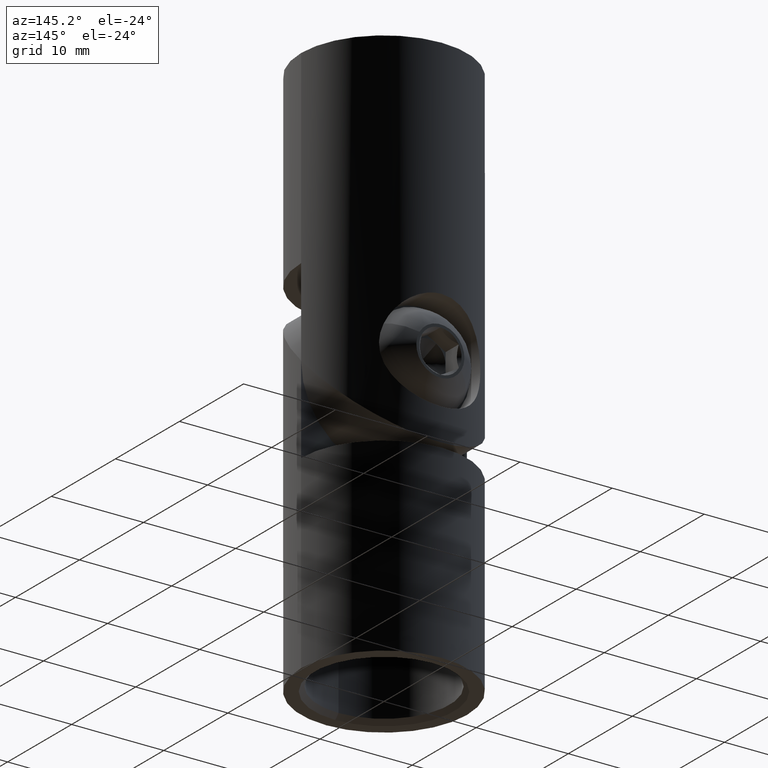
[diagram: clean part render]
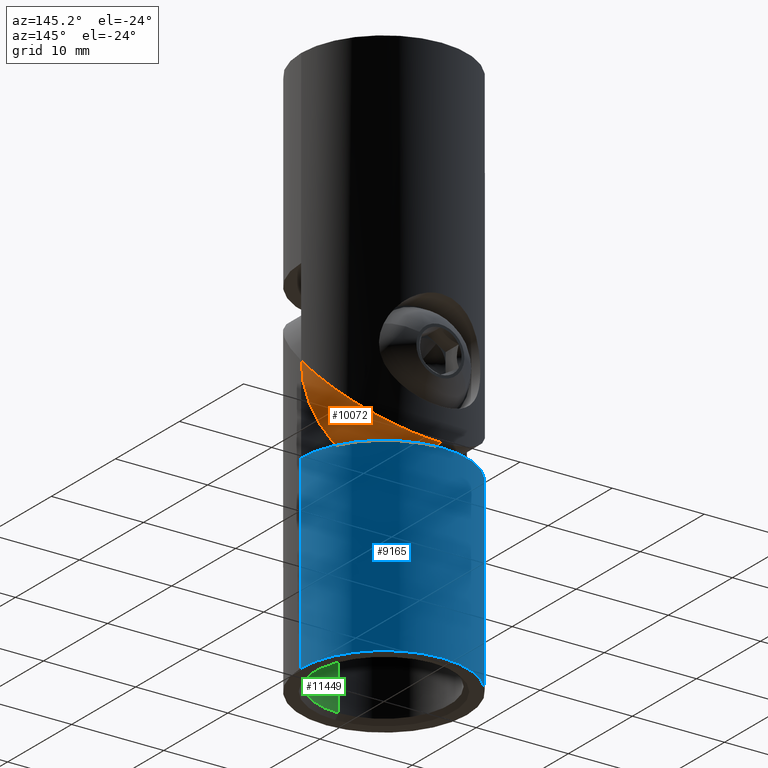
[diagram: same view with three faces highlighted in distinct colors, each labeled with its STEP entity id]
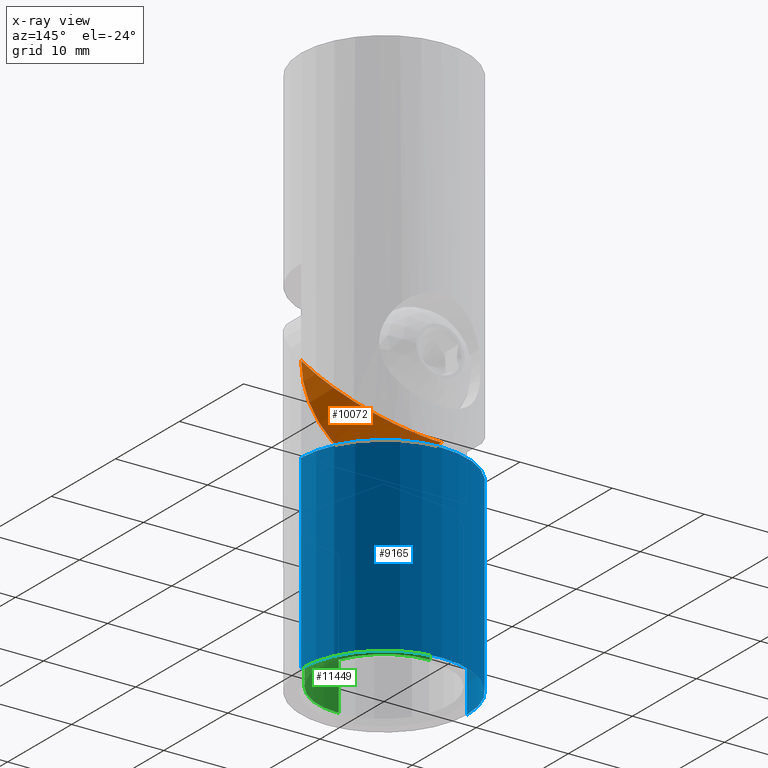
[diagram: x-ray of the same camera — body ghosted, the three highlighted faces saturated]
A machine part, auxiliary view with three faces highlighted in distinct colors.
The next image is the same camera in x-ray (body ghosted, the three faces saturated) — at least one of them is partly hidden behind the body in this view.
Their STEP definitions:

[orange] entity #10072 — the highlighted cylindrical surface (partial cylindrical patch) has radius 9 mm, axis along (-0, -1, -0).
#29 = EDGE_CURVE ( 'NONE', #7016, #9871, #10879, .T. ) ;
#1068 = VECTOR ( 'NONE', #2670, 1000.000000000000000 ) ;
#1731 = DIRECTION ( 'NONE',  ( 0.000000000000000000, 0.000000000000000000, 1.000000000000000000 ) ) ;
#1733 = CYLINDRICAL_SURFACE ( 'NONE', #2919, 8.999999999999998224 ) ;
#2089 = EDGE_CURVE ( 'NONE', #9871, #6014, #3854, .T. ) ;
#2095 = CARTESIAN_POINT ( 'NONE',  ( 9.000000000000000000, 0.000000000000000000, -9.499999999999998224 ) ) ;
#2556 = CARTESIAN_POINT ( 'NONE',  ( -1.734723475976807094E-15, 8.999999999999998224, -18.49999999999999645 ) ) ;
#2670 = DIRECTION ( 'NONE',  ( -0.000000000000000000, -1.000000000000000000, -0.000000000000000000 ) ) ;
#2919 = AXIS2_PLACEMENT_3D ( 'NONE', #12274, #9195, #2997 ) ;
#2959 = CARTESIAN_POINT ( 'NONE',  ( 9.000000000000000000, 5.272077938642141248, -14.77207793864213947 ) ) ;
#2997 = DIRECTION ( 'NONE',  ( 0.000000000000000000, 0.000000000000000000, -1.000000000000000000 ) ) ;
#3730 = CARTESIAN_POINT ( 'NONE',  ( -1.734723475976807094E-15, 0.000000000000000000, -18.49999999999999645 ) ) ;
#3793 = EDGE_CURVE ( 'NONE', #7016, #6014, #7360, .T. ) ;
#3854 = LINE ( 'NONE', #12989, #1068 ) ;
#5850 = CARTESIAN_POINT ( 'NONE',  ( -1.734723475976807094E-15, -0.000000000000000000, -9.499999999999998224 ) ) ;
#6014 = VERTEX_POINT ( 'NONE', #3730 ) ;
#7016 = VERTEX_POINT ( 'NONE', #12423 ) ;
#7133 = EDGE_LOOP ( 'NONE', ( #11623, #11797, #12955 ) ) ;
#7360 = CIRCLE ( 'NONE', #8536, 9.000000000000000000 ) ;
#8536 = AXIS2_PLACEMENT_3D ( 'NONE', #5850, #10002, #1731 ) ;
#9195 = DIRECTION ( 'NONE',  ( -0.000000000000000000, -1.000000000000000000, -0.000000000000000000 ) ) ;
#9325 = CARTESIAN_POINT ( 'NONE',  ( 5.272077938642142136, 8.999999999999998224, -18.49999999999999289 ) ) ;
#9871 = VERTEX_POINT ( 'NONE', #2556 ) ;
#10002 = DIRECTION ( 'NONE',  ( -0.000000000000000000, 1.000000000000000000, -0.000000000000000000 ) ) ;
#10072 = ADVANCED_FACE ( 'NONE', ( #11761 ), #1733, .T. ) ;
#10183 = CARTESIAN_POINT ( 'NONE',  ( -1.734723475976807094E-15, 8.999999999999998224, -18.49999999999999645 ) ) ;
#10879 =( BOUNDED_CURVE ( )  B_SPLINE_CURVE ( 3, ( #2095, #2959, #9325, #10183 ),
 .UNSPECIFIED., .F., .F. ) 
 B_SPLINE_CURVE_WITH_KNOTS ( ( 4, 4 ),
 ( 4.712388980384689674, 6.283185307179586232 ),
 .UNSPECIFIED. ) 
 CURVE ( )  GEOMETRIC_REPRESENTATION_ITEM ( )  RATIONAL_B_SPLINE_CURVE ( ( 1.000000000000000000, 0.8047378541243649375, 0.8047378541243649375, 1.000000000000000000 ) ) 
 REPRESENTATION_ITEM ( '' )  );
#11623 = ORIENTED_EDGE ( 'NONE', *, *, #2089, .F. ) ;
#11761 = FACE_OUTER_BOUND ( 'NONE', #7133, .T. ) ;
#11797 = ORIENTED_EDGE ( 'NONE', *, *, #29, .F. ) ;
#12274 = CARTESIAN_POINT ( 'NONE',  ( -1.734723475976807094E-15, 9.000000000000000000, -9.499999999999998224 ) ) ;
#12423 = CARTESIAN_POINT ( 'NONE',  ( 9.000000000000000000, 0.000000000000000000, -9.499999999999998224 ) ) ;
#12955 = ORIENTED_EDGE ( 'NONE', *, *, #3793, .T. ) ;
#12989 = CARTESIAN_POINT ( 'NONE',  ( -1.734723475976807094E-15, 9.000000000000000000, -18.49999999999999645 ) ) ;

[blue] entity #9165 — the highlighted cylindrical surface (partial cylindrical patch) has radius 9 mm, axis along (0, 0, 1).
#569 = CIRCLE ( 'NONE', #5946, 9.000000000000007105 ) ;
#1070 = DIRECTION ( 'NONE',  ( 1.000000000000000000, 0.000000000000000000, 0.000000000000000000 ) ) ;
#1077 = CYLINDRICAL_SURFACE ( 'NONE', #9506, 9.000000000000007105 ) ;
#1226 = CARTESIAN_POINT ( 'NONE',  ( -9.000000000000007105, 0.000000000000000000, 0.000000000000000000 ) ) ;
#1436 = ORIENTED_EDGE ( 'NONE', *, *, #10505, .F. ) ;
#1791 = AXIS2_PLACEMENT_3D ( 'NONE', #8031, #1846, #13067 ) ;
#1796 = VERTEX_POINT ( 'NONE', #12150 ) ;
#1846 = DIRECTION ( 'NONE',  ( 0.000000000000000000, 0.000000000000000000, 1.000000000000000000 ) ) ;
#1922 = ORIENTED_EDGE ( 'NONE', *, *, #3507, .F. ) ;
#3507 = EDGE_CURVE ( 'NONE', #7596, #5503, #569, .T. ) ;
#3660 = EDGE_CURVE ( 'NONE', #11663, #1796, #8334, .T. ) ;
#3680 = LINE ( 'NONE', #9142, #8176 ) ;
#4055 = DIRECTION ( 'NONE',  ( 0.000000000000000000, 0.000000000000000000, -1.000000000000000000 ) ) ;
#4216 = DIRECTION ( 'NONE',  ( 0.000000000000000000, 0.000000000000000000, 1.000000000000000000 ) ) ;
#4458 = CARTESIAN_POINT ( 'NONE',  ( -9.000000000000000000, 0.000000000000000000, 20.50000000000001776 ) ) ;
#5503 = VERTEX_POINT ( 'NONE', #12660 ) ;
#5946 = AXIS2_PLACEMENT_3D ( 'NONE', #7268, #4216, #1070 ) ;
#7039 = VECTOR ( 'NONE', #10124, 1000.000000000000000 ) ;
#7095 = DIRECTION ( 'NONE',  ( 0.000000000000000000, 0.000000000000000000, -1.000000000000000000 ) ) ;
#7197 = DIRECTION ( 'NONE',  ( -1.000000000000000000, 0.000000000000000000, 0.000000000000000000 ) ) ;
#7268 = CARTESIAN_POINT ( 'NONE',  ( 0.000000000000000000, 0.000000000000000000, 20.50000000000001776 ) ) ;
#7596 = VERTEX_POINT ( 'NONE', #4458 ) ;
#8031 = CARTESIAN_POINT ( 'NONE',  ( 0.000000000000000000, 0.000000000000000000, 0.000000000000000000 ) ) ;
#8107 = CARTESIAN_POINT ( 'NONE',  ( 0.000000000000000000, 0.000000000000000000, 20.50000000000001776 ) ) ;
#8176 = VECTOR ( 'NONE', #7095, 1000.000000000000000 ) ;
#8334 = CIRCLE ( 'NONE', #1791, 9.000000000000007105 ) ;
#8453 = EDGE_LOOP ( 'NONE', ( #1436, #1922, #9425, #9440 ) ) ;
#9142 = CARTESIAN_POINT ( 'NONE',  ( 9.000000000000007105, 1.102182119232619883E-15, 20.50000000000001776 ) ) ;
#9165 = ADVANCED_FACE ( 'NONE', ( #10479 ), #1077, .T. ) ;
#9425 = ORIENTED_EDGE ( 'NONE', *, *, #11966, .T. ) ;
#9440 = ORIENTED_EDGE ( 'NONE', *, *, #3660, .T. ) ;
#9506 = AXIS2_PLACEMENT_3D ( 'NONE', #8107, #4055, #7197 ) ;
#10124 = DIRECTION ( 'NONE',  ( 0.000000000000000000, 0.000000000000000000, -1.000000000000000000 ) ) ;
#10479 = FACE_OUTER_BOUND ( 'NONE', #8453, .T. ) ;
#10505 = EDGE_CURVE ( 'NONE', #5503, #1796, #3680, .T. ) ;
#10609 = LINE ( 'NONE', #11176, #7039 ) ;
#11176 = CARTESIAN_POINT ( 'NONE',  ( -9.000000000000007105, 0.000000000000000000, 20.50000000000001776 ) ) ;
#11663 = VERTEX_POINT ( 'NONE', #1226 ) ;
#11966 = EDGE_CURVE ( 'NONE', #7596, #11663, #10609, .T. ) ;
#12150 = CARTESIAN_POINT ( 'NONE',  ( 9.000000000000007105, 0.000000000000000000, 0.000000000000000000 ) ) ;
#12660 = CARTESIAN_POINT ( 'NONE',  ( 9.000000000000000000, 1.102182119232618700E-15, 20.50000000000001776 ) ) ;
#13067 = DIRECTION ( 'NONE',  ( 1.000000000000000000, 0.000000000000000000, 0.000000000000000000 ) ) ;

[green] entity #11449 — the highlighted cylindrical surface (partial cylindrical patch) has radius 7.1 mm, axis along (0, 0, 1).
#115 = CARTESIAN_POINT ( 'NONE',  ( 0.000000000000000000, 7.099999999999996092, 4.500000000000007105 ) ) ;
#224 = CIRCLE ( 'NONE', #4487, 7.099999999999996980 ) ;
#239 = VECTOR ( 'NONE', #3085, 1000.000000000000000 ) ;
#914 = DIRECTION ( 'NONE',  ( 0.000000000000000000, 1.079064276512101846E-18, 1.000000000000000000 ) ) ;
#998 = CARTESIAN_POINT ( 'NONE',  ( 8.694992273946211691E-16, -7.099999999999996980, 20.00000000000000355 ) ) ;
#1511 = VERTEX_POINT ( 'NONE', #8805 ) ;
#1933 = ORIENTED_EDGE ( 'NONE', *, *, #5153, .T. ) ;
#2960 = DIRECTION ( 'NONE',  ( 0.000000000000000000, -1.079064276512102231E-18, -1.000000000000000000 ) ) ;
#3000 = LINE ( 'NONE', #7109, #239 ) ;
#3085 = DIRECTION ( 'NONE',  ( 0.000000000000000000, -1.079064276512102231E-18, -1.000000000000000000 ) ) ;
#3968 = DIRECTION ( 'NONE',  ( 0.000000000000000000, 1.000000000000000000, 0.000000000000000000 ) ) ;
#4013 = DIRECTION ( 'NONE',  ( 0.000000000000000000, 1.000000000000000000, 0.000000000000000000 ) ) ;
#4463 = FACE_OUTER_BOUND ( 'NONE', #8979, .T. ) ;
#4487 = AXIS2_PLACEMENT_3D ( 'NONE', #4960, #914, #5133 ) ;
#4960 = CARTESIAN_POINT ( 'NONE',  ( 0.000000000000000000, -5.395321382560593969E-19, 20.00000000000000355 ) ) ;
#5133 = DIRECTION ( 'NONE',  ( 0.000000000000000000, -1.000000000000000000, 0.000000000000000000 ) ) ;
#5153 = EDGE_CURVE ( 'NONE', #7025, #10708, #224, .T. ) ;
#5165 = CARTESIAN_POINT ( 'NONE',  ( 0.000000000000000000, -2.186843575119838042E-17, 0.2338896049042769876 ) ) ;
#5171 = AXIS2_PLACEMENT_3D ( 'NONE', #5165, #2960, #4013 ) ;
#5259 = AXIS2_PLACEMENT_3D ( 'NONE', #13308, #9019, #3968 ) ;
#6649 = ORIENTED_EDGE ( 'NONE', *, *, #8321, .T. ) ;
#7025 = VERTEX_POINT ( 'NONE', #998 ) ;
#7109 = CARTESIAN_POINT ( 'NONE',  ( 8.694992273946211691E-16, -7.099999999999996980, 0.2338896049042769876 ) ) ;
#7127 = DIRECTION ( 'NONE',  ( 0.000000000000000000, -1.079064276512102231E-18, -1.000000000000000000 ) ) ;
#7619 = ORIENTED_EDGE ( 'NONE', *, *, #11527, .F. ) ;
#8321 = EDGE_CURVE ( 'NONE', #10708, #8400, #12623, .T. ) ;
#8400 = VERTEX_POINT ( 'NONE', #115 ) ;
#8501 = CYLINDRICAL_SURFACE ( 'NONE', #5171, 7.099999999999996980 ) ;
#8805 = CARTESIAN_POINT ( 'NONE',  ( 8.694992273946209718E-16, -7.099999999999996092, 4.500000000000007105 ) ) ;
#8979 = EDGE_LOOP ( 'NONE', ( #7619, #1933, #6649, #11228 ) ) ;
#9019 = DIRECTION ( 'NONE',  ( 0.000000000000000000, -1.079064276512102231E-18, -1.000000000000000000 ) ) ;
#9814 = CIRCLE ( 'NONE', #5259, 7.099999999999996092 ) ;
#10008 = EDGE_CURVE ( 'NONE', #8400, #1511, #9814, .T. ) ;
#10204 = CARTESIAN_POINT ( 'NONE',  ( 0.000000000000000000, 7.099999999999996980, 0.2338896049042769876 ) ) ;
#10496 = CARTESIAN_POINT ( 'NONE',  ( 0.000000000000000000, 7.099999999999996980, 20.00000000000000355 ) ) ;
#10708 = VERTEX_POINT ( 'NONE', #10496 ) ;
#11228 = ORIENTED_EDGE ( 'NONE', *, *, #10008, .T. ) ;
#11449 = ADVANCED_FACE ( 'NONE', ( #4463 ), #8501, .F. ) ;
#11527 = EDGE_CURVE ( 'NONE', #7025, #1511, #3000, .T. ) ;
#12285 = VECTOR ( 'NONE', #7127, 1000.000000000000000 ) ;
#12623 = LINE ( 'NONE', #10204, #12285 ) ;
#13308 = CARTESIAN_POINT ( 'NONE',  ( 0.000000000000000000, -1.726502842419364802E-17, 4.500000000000007105 ) ) ;